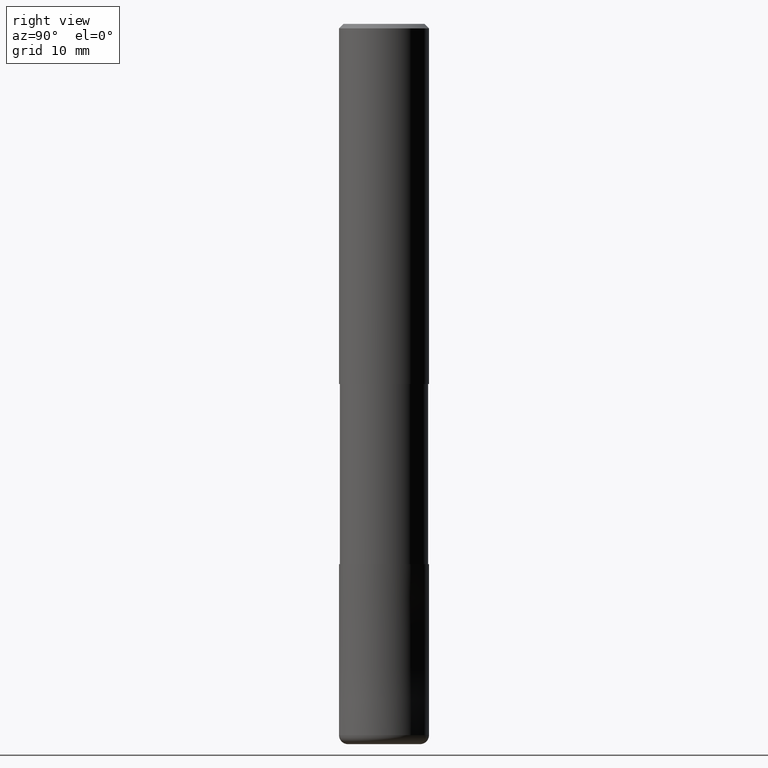
[diagram: clean part render]
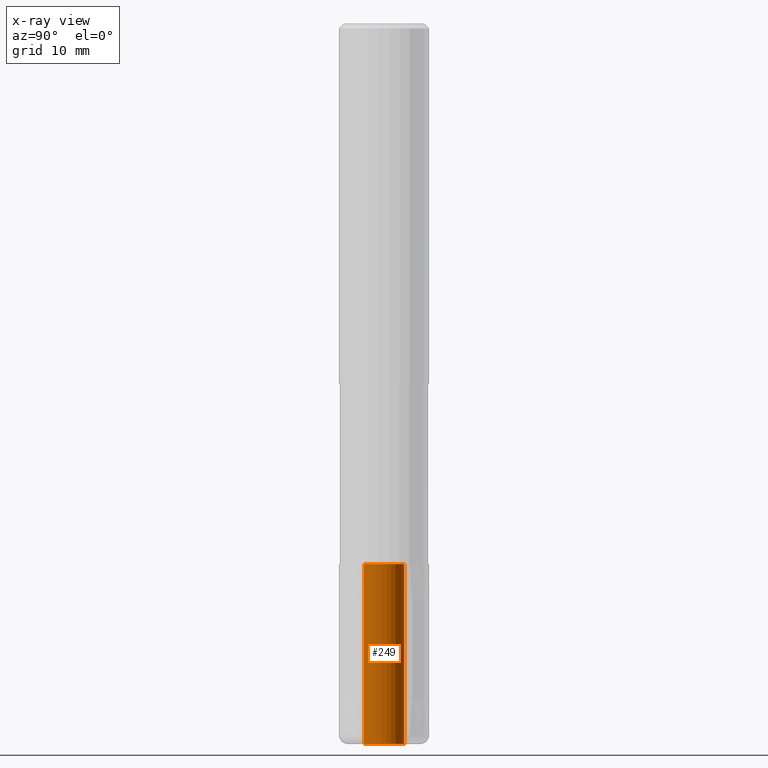
[diagram: x-ray — body ghosted, one internal face saturated and labeled with its STEP entity id]
A machine part, right view, then the same camera in x-ray: the body is ghosted and one INTERNAL B-rep face — a face not visible from any outside direction — is saturated and labeled: STEP entity #249.
In plain terms, the highlighted cylindrical surface (edge-blend (fillet) strip) has radius 2.25 mm, axis along (-0, -0, 1).
Its self-contained STEP definition (entity closure, byte-faithful):
#139=VERTEX_POINT('',#329);
#153=EDGE_CURVE('',#139,#221,#346,.T.);
#167=EDGE_CURVE('',#139,#267,#360,.T.);
#193=EDGE_CURVE('',#267,#261,#390,.T.);
#221=VERTEX_POINT('',#421);
#241=EDGE_CURVE('',#261,#221,#443,.T.);
#249=ADVANCED_FACE('',(#453),#454,.F.);
#261=VERTEX_POINT('',#470);
#267=VERTEX_POINT('',#477);
#329=CARTESIAN_POINT('',(0.0,2.25,-60.0));
#346=CIRCLE('',#558,2.25);
#360=LINE('',#577,#578);
#390=CIRCLE('',#618,2.25);
#421=CARTESIAN_POINT('',(2.75536429610035E-016,-2.25,-60.0));
#443=LINE('',#687,#688);
#453=FACE_OUTER_BOUND('',#700,.T.);
#454=CYLINDRICAL_SURFACE('',#701,2.25);
#470=CARTESIAN_POINT('',(2.75536429610035E-016,-2.25,-80.0));
#477=CARTESIAN_POINT('',(0.0,2.25,-80.0));
#558=AXIS2_PLACEMENT_3D('',#806,#807,#808);
#577=CARTESIAN_POINT('',(-2.75536429610035E-016,2.25,-70.0));
#578=VECTOR('',#816,1.0);
#618=AXIS2_PLACEMENT_3D('',#860,#861,#862);
#687=CARTESIAN_POINT('',(2.75536429610035E-016,-2.25,-70.0));
#688=VECTOR('',#921,1.0);
#700=EDGE_LOOP('',(#937,#938,#939,#940));
#701=AXIS2_PLACEMENT_3D('',#941,#942,#943);
#806=CARTESIAN_POINT('',(0.0,0.0,-60.0));
#807=DIRECTION('',(0.0,0.0,-1.0));
#808=DIRECTION('',(0.0,1.0,0.0));
#816=DIRECTION('',(0.0,-0.0,-1.0));
#860=CARTESIAN_POINT('',(0.0,0.0,-80.0));
#861=DIRECTION('',(0.0,0.0,-1.0));
#862=DIRECTION('',(0.0,1.0,0.0));
#921=DIRECTION('',(0.0,-0.0,1.0));
#937=ORIENTED_EDGE('',*,*,#167,.T.);
#938=ORIENTED_EDGE('',*,*,#193,.T.);
#939=ORIENTED_EDGE('',*,*,#241,.T.);
#940=ORIENTED_EDGE('',*,*,#153,.F.);
#941=CARTESIAN_POINT('',(0.0,0.0,-70.0));
#942=DIRECTION('',(-0.0,-0.0,1.0));
#943=DIRECTION('',(0.0,1.0,0.0));